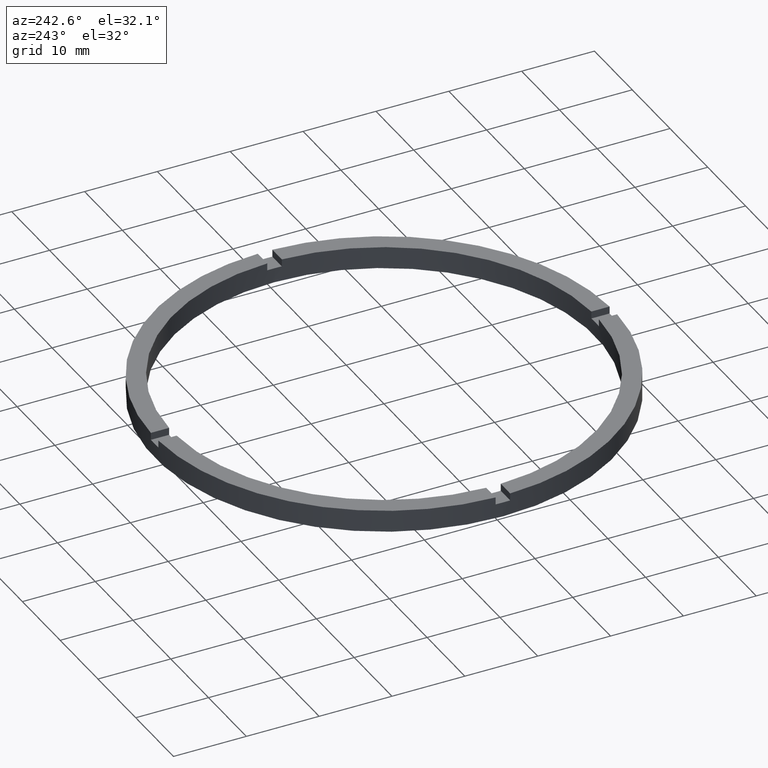
[diagram: clean part render]
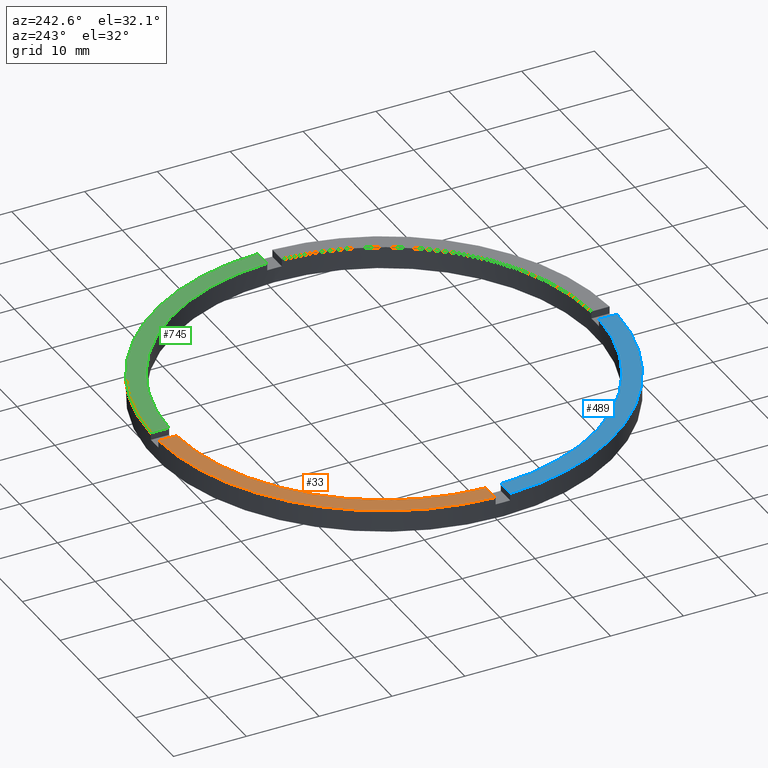
[diagram: same view with three faces highlighted in distinct colors, each labeled with its STEP entity id]
A machine part, auxiliary view with three faces highlighted in distinct colors.
Their STEP definitions:

[orange] entity #33 — the highlighted planar face has unit normal (0, 0, 1).
#14 = DIRECTION ( 'NONE',  ( 1.000000000000000000, 0.000000000000000000, 0.000000000000000000 ) ) ;
#33 = ADVANCED_FACE ( 'NONE', ( #454 ), #543, .T. ) ;
#66 = CARTESIAN_POINT ( 'NONE',  ( -1.000000000000024425, 31.48412298286233124, 3.000000000000000000 ) ) ;
#69 = CARTESIAN_POINT ( 'NONE',  ( -31.48412298286233124, 0.9999999999999742428, 3.000000000000000000 ) ) ;
#75 = EDGE_CURVE ( 'NONE', #564, #653, #718, .T. ) ;
#92 = AXIS2_PLACEMENT_3D ( 'NONE', #738, #641, #14 ) ;
#94 = EDGE_CURVE ( 'NONE', #171, #564, #204, .T. ) ;
#171 = VERTEX_POINT ( 'NONE', #66 ) ;
#175 = LINE ( 'NONE', #279, #669 ) ;
#196 = AXIS2_PLACEMENT_3D ( 'NONE', #588, #595, #352 ) ;
#204 = LINE ( 'NONE', #648, #606 ) ;
#215 = CARTESIAN_POINT ( 'NONE',  ( -28.98275349237887966, 0.9999999999999746869, 3.000000000000000000 ) ) ;
#218 = CARTESIAN_POINT ( 'NONE',  ( 0.000000000000000000, 0.000000000000000000, 3.000000000000000000 ) ) ;
#234 = AXIS2_PLACEMENT_3D ( 'NONE', #218, #318, #750 ) ;
#253 = ORIENTED_EDGE ( 'NONE', *, *, #674, .T. ) ;
#261 = ORIENTED_EDGE ( 'NONE', *, *, #339, .F. ) ;
#279 = CARTESIAN_POINT ( 'NONE',  ( -21.50000000000018119, 0.9999999999999761302, 3.000000000000000000 ) ) ;
#318 = DIRECTION ( 'NONE',  ( 0.000000000000000000, 0.000000000000000000, 1.000000000000000000 ) ) ;
#339 = EDGE_CURVE ( 'NONE', #653, #700, #175, .T. ) ;
#352 = DIRECTION ( 'NONE',  ( 1.000000000000000000, 0.000000000000000000, -0.000000000000000000 ) ) ;
#408 = CIRCLE ( 'NONE', #234, 31.50000000000000000 ) ;
#433 = EDGE_LOOP ( 'NONE', ( #464, #253, #261, #720 ) ) ;
#454 = FACE_OUTER_BOUND ( 'NONE', #433, .T. ) ;
#464 = ORIENTED_EDGE ( 'NONE', *, *, #94, .F. ) ;
#466 = DIRECTION ( 'NONE',  ( -1.000000000000000000, -1.951563910473908228E-16, 0.000000000000000000 ) ) ;
#543 = PLANE ( 'NONE',  #196 ) ;
#546 = DIRECTION ( 'NONE',  ( -0.000000000000000000, -1.000000000000000000, -0.000000000000000000 ) ) ;
#564 = VERTEX_POINT ( 'NONE', #689 ) ;
#588 = CARTESIAN_POINT ( 'NONE',  ( 0.000000000000000000, 0.000000000000000000, 3.000000000000000000 ) ) ;
#595 = DIRECTION ( 'NONE',  ( 0.000000000000000000, 0.000000000000000000, 1.000000000000000000 ) ) ;
#606 = VECTOR ( 'NONE', #546, 1000.000000000000000 ) ;
#641 = DIRECTION ( 'NONE',  ( 0.000000000000000000, 0.000000000000000000, 1.000000000000000000 ) ) ;
#648 = CARTESIAN_POINT ( 'NONE',  ( -1.000000000000024425, 21.50000000000000000, 3.000000000000000000 ) ) ;
#653 = VERTEX_POINT ( 'NONE', #215 ) ;
#669 = VECTOR ( 'NONE', #466, 1000.000000000000000 ) ;
#674 = EDGE_CURVE ( 'NONE', #171, #700, #408, .T. ) ;
#689 = CARTESIAN_POINT ( 'NONE',  ( -1.000000000000024425, 28.98275349237887610, 3.000000000000000000 ) ) ;
#700 = VERTEX_POINT ( 'NONE', #69 ) ;
#718 = CIRCLE ( 'NONE', #92, 29.00000000000000000 ) ;
#720 = ORIENTED_EDGE ( 'NONE', *, *, #75, .F. ) ;
#738 = CARTESIAN_POINT ( 'NONE',  ( 0.000000000000000000, 0.000000000000000000, 3.000000000000000000 ) ) ;
#750 = DIRECTION ( 'NONE',  ( 1.000000000000000000, 0.000000000000000000, 0.000000000000000000 ) ) ;

[blue] entity #489 — the highlighted planar face has unit normal (0, 0, 1).
#5 = CARTESIAN_POINT ( 'NONE',  ( 0.000000000000000000, 0.000000000000000000, 3.000000000000000000 ) ) ;
#41 = CIRCLE ( 'NONE', #287, 29.00000000000000000 ) ;
#44 = CARTESIAN_POINT ( 'NONE',  ( -1.000000000000162759, -21.50000000000017764, 3.000000000000000000 ) ) ;
#46 = DIRECTION ( 'NONE',  ( 0.000000000000000000, 0.000000000000000000, 1.000000000000000000 ) ) ;
#82 = DIRECTION ( 'NONE',  ( 1.301042606982605074E-16, -1.000000000000000000, 0.000000000000000000 ) ) ;
#87 = AXIS2_PLACEMENT_3D ( 'NONE', #5, #618, #624 ) ;
#100 = CARTESIAN_POINT ( 'NONE',  ( -28.98275349237887610, -1.000000000000025313, 3.000000000000000000 ) ) ;
#143 = VECTOR ( 'NONE', #82, 1000.000000000000000 ) ;
#158 = VERTEX_POINT ( 'NONE', #100 ) ;
#182 = FACE_OUTER_BOUND ( 'NONE', #521, .T. ) ;
#186 = LINE ( 'NONE', #44, #143 ) ;
#201 = EDGE_CURVE ( 'NONE', #158, #455, #41, .T. ) ;
#214 = CARTESIAN_POINT ( 'NONE',  ( 0.000000000000000000, 0.000000000000000000, 3.000000000000000000 ) ) ;
#239 = DIRECTION ( 'NONE',  ( 1.000000000000000000, 1.951563910473908228E-16, -0.000000000000000000 ) ) ;
#257 = VERTEX_POINT ( 'NONE', #494 ) ;
#273 = ORIENTED_EDGE ( 'NONE', *, *, #201, .F. ) ;
#287 = AXIS2_PLACEMENT_3D ( 'NONE', #214, #505, #311 ) ;
#311 = DIRECTION ( 'NONE',  ( 1.000000000000000000, 0.000000000000000000, 0.000000000000000000 ) ) ;
#331 = CARTESIAN_POINT ( 'NONE',  ( 0.000000000000000000, 0.000000000000000000, 3.000000000000000000 ) ) ;
#375 = EDGE_CURVE ( 'NONE', #257, #514, #432, .T. ) ;
#376 = DIRECTION ( 'NONE',  ( 1.000000000000000000, 0.000000000000000000, -0.000000000000000000 ) ) ;
#424 = EDGE_CURVE ( 'NONE', #455, #514, #186, .T. ) ;
#432 = CIRCLE ( 'NONE', #87, 31.50000000000000000 ) ;
#449 = CARTESIAN_POINT ( 'NONE',  ( -1.000000000000161426, -31.48412298286232414, 3.000000000000000000 ) ) ;
#455 = VERTEX_POINT ( 'NONE', #526 ) ;
#460 = LINE ( 'NONE', #626, #712 ) ;
#489 = ADVANCED_FACE ( 'NONE', ( #182 ), #563, .T. ) ;
#493 = ORIENTED_EDGE ( 'NONE', *, *, #424, .F. ) ;
#494 = CARTESIAN_POINT ( 'NONE',  ( -31.48412298286233124, -1.000000000000025757, 3.000000000000000000 ) ) ;
#505 = DIRECTION ( 'NONE',  ( 0.000000000000000000, 0.000000000000000000, 1.000000000000000000 ) ) ;
#514 = VERTEX_POINT ( 'NONE', #449 ) ;
#521 = EDGE_LOOP ( 'NONE', ( #493, #273, #780, #671 ) ) ;
#526 = CARTESIAN_POINT ( 'NONE',  ( -1.000000000000161871, -28.98275349237887255, 3.000000000000000000 ) ) ;
#563 = PLANE ( 'NONE',  #580 ) ;
#580 = AXIS2_PLACEMENT_3D ( 'NONE', #331, #46, #376 ) ;
#618 = DIRECTION ( 'NONE',  ( 0.000000000000000000, 0.000000000000000000, 1.000000000000000000 ) ) ;
#624 = DIRECTION ( 'NONE',  ( 1.000000000000000000, 0.000000000000000000, 0.000000000000000000 ) ) ;
#626 = CARTESIAN_POINT ( 'NONE',  ( -21.50000000000018119, -1.000000000000023981, 3.000000000000000000 ) ) ;
#671 = ORIENTED_EDGE ( 'NONE', *, *, #375, .T. ) ;
#712 = VECTOR ( 'NONE', #239, 1000.000000000000000 ) ;
#723 = EDGE_CURVE ( 'NONE', #257, #158, #460, .T. ) ;
#780 = ORIENTED_EDGE ( 'NONE', *, *, #723, .F. ) ;

[green] entity #745 — the highlighted planar face has unit normal (0, 0, 1).
#27 = DIRECTION ( 'NONE',  ( 1.000000000000000000, 0.000000000000000000, 0.000000000000000000 ) ) ;
#36 = VERTEX_POINT ( 'NONE', #423 ) ;
#60 = CARTESIAN_POINT ( 'NONE',  ( 0.000000000000000000, 0.000000000000000000, 3.000000000000000000 ) ) ;
#65 = AXIS2_PLACEMENT_3D ( 'NONE', #509, #76, #27 ) ;
#76 = DIRECTION ( 'NONE',  ( 0.000000000000000000, 0.000000000000000000, 1.000000000000000000 ) ) ;
#81 = AXIS2_PLACEMENT_3D ( 'NONE', #60, #584, #180 ) ;
#83 = CARTESIAN_POINT ( 'NONE',  ( 31.48412298286233479, 0.9999999999998414602, 3.000000000000000000 ) ) ;
#97 = ORIENTED_EDGE ( 'NONE', *, *, #235, .F. ) ;
#121 = CARTESIAN_POINT ( 'NONE',  ( 0.9999999999999754641, 28.98275349237887966, 3.000000000000000000 ) ) ;
#153 = VECTOR ( 'NONE', #231, 1000.000000000000000 ) ;
#155 = LINE ( 'NONE', #528, #153 ) ;
#180 = DIRECTION ( 'NONE',  ( 1.000000000000000000, 0.000000000000000000, -0.000000000000000000 ) ) ;
#181 = ORIENTED_EDGE ( 'NONE', *, *, #621, .F. ) ;
#188 = ORIENTED_EDGE ( 'NONE', *, *, #346, .F. ) ;
#231 = DIRECTION ( 'NONE',  ( -1.000000000000000000, -6.505213034913022906E-17, -0.000000000000000000 ) ) ;
#235 = EDGE_CURVE ( 'NONE', #298, #36, #714, .T. ) ;
#266 = CARTESIAN_POINT ( 'NONE',  ( 0.000000000000000000, 0.000000000000000000, 3.000000000000000000 ) ) ;
#293 = EDGE_CURVE ( 'NONE', #679, #36, #506, .T. ) ;
#298 = VERTEX_POINT ( 'NONE', #121 ) ;
#346 = EDGE_CURVE ( 'NONE', #679, #608, #155, .T. ) ;
#351 = AXIS2_PLACEMENT_3D ( 'NONE', #266, #767, #567 ) ;
#356 = EDGE_LOOP ( 'NONE', ( #97, #181, #188, #438 ) ) ;
#390 = PLANE ( 'NONE',  #81 ) ;
#423 = CARTESIAN_POINT ( 'NONE',  ( 0.9999999999999754641, 31.48412298286233124, 3.000000000000000000 ) ) ;
#431 = VECTOR ( 'NONE', #736, 1000.000000000000000 ) ;
#438 = ORIENTED_EDGE ( 'NONE', *, *, #293, .T. ) ;
#456 = CARTESIAN_POINT ( 'NONE',  ( 28.98275349237888321, 0.9999999999998414602, 3.000000000000000000 ) ) ;
#506 = CIRCLE ( 'NONE', #65, 31.50000000000000000 ) ;
#509 = CARTESIAN_POINT ( 'NONE',  ( 0.000000000000000000, 0.000000000000000000, 3.000000000000000000 ) ) ;
#528 = CARTESIAN_POINT ( 'NONE',  ( 21.49999999999999645, 0.9999999999998409050, 3.000000000000000000 ) ) ;
#567 = DIRECTION ( 'NONE',  ( 1.000000000000000000, 0.000000000000000000, 0.000000000000000000 ) ) ;
#584 = DIRECTION ( 'NONE',  ( 0.000000000000000000, 0.000000000000000000, 1.000000000000000000 ) ) ;
#608 = VERTEX_POINT ( 'NONE', #456 ) ;
#621 = EDGE_CURVE ( 'NONE', #608, #298, #702, .T. ) ;
#638 = CARTESIAN_POINT ( 'NONE',  ( 0.9999999999999754641, 21.50000000000000000, 3.000000000000000000 ) ) ;
#679 = VERTEX_POINT ( 'NONE', #83 ) ;
#702 = CIRCLE ( 'NONE', #351, 29.00000000000000000 ) ;
#714 = LINE ( 'NONE', #638, #431 ) ;
#719 = FACE_OUTER_BOUND ( 'NONE', #356, .T. ) ;
#736 = DIRECTION ( 'NONE',  ( 0.000000000000000000, 1.000000000000000000, 0.000000000000000000 ) ) ;
#745 = ADVANCED_FACE ( 'NONE', ( #719 ), #390, .T. ) ;
#767 = DIRECTION ( 'NONE',  ( 0.000000000000000000, 0.000000000000000000, 1.000000000000000000 ) ) ;